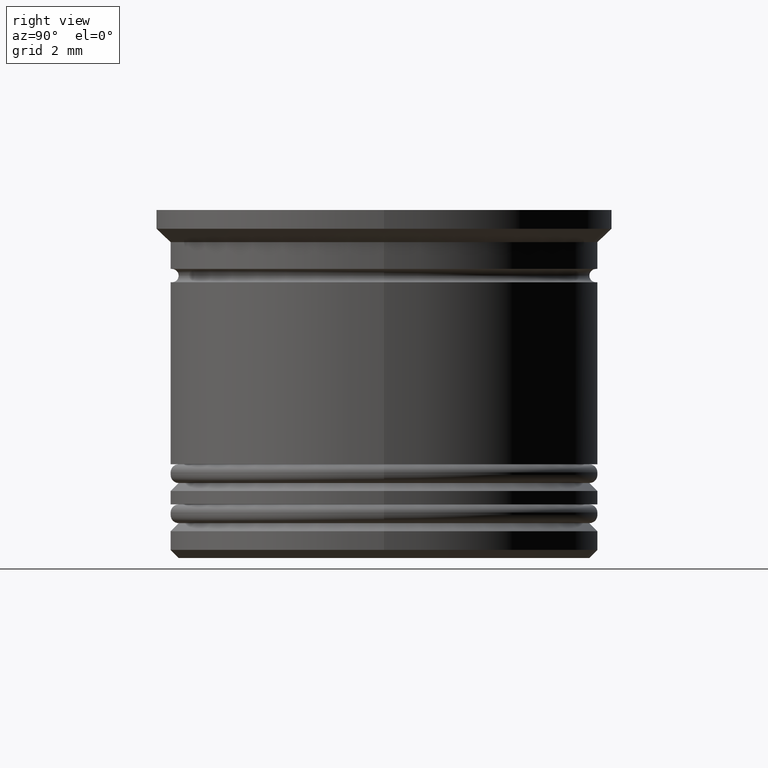
[diagram: clean part render]
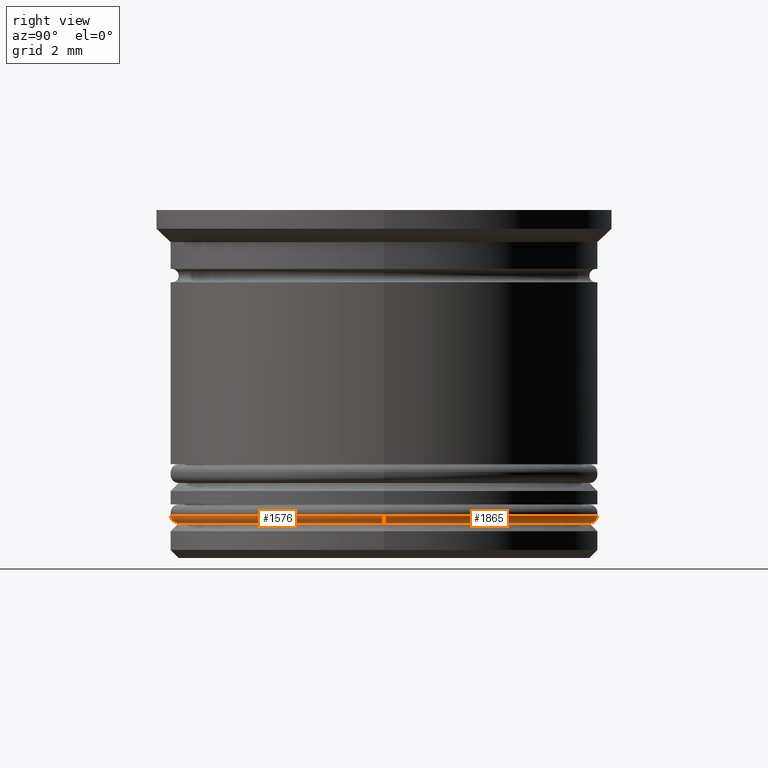
[diagram: same view with one multi-face feature highlighted, each face labeled with its STEP entity id]
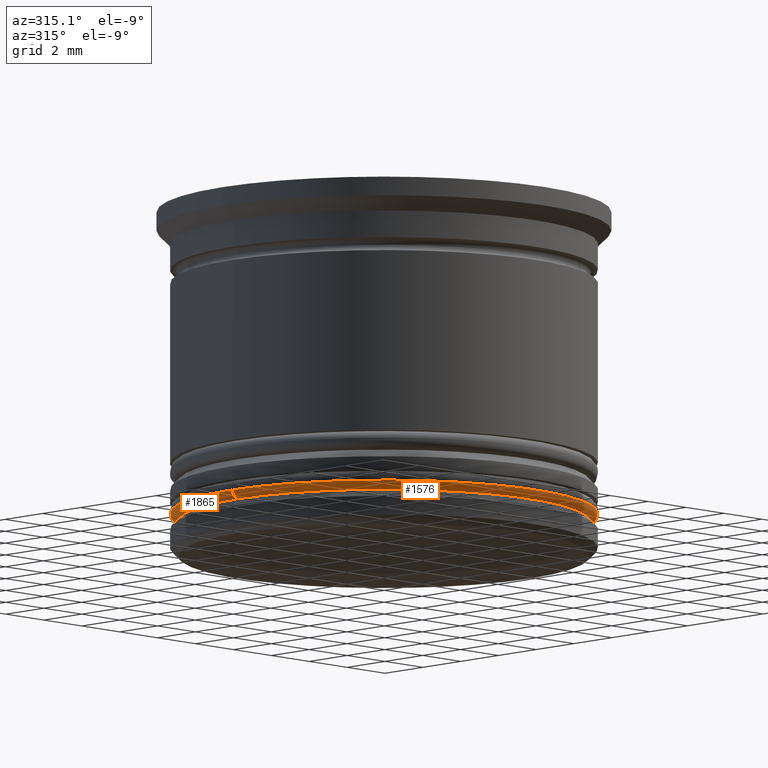
[diagram: same view with one multi-face feature highlighted, each face labeled with its STEP entity id]
A machine part, right view. The highlighted faces form ONE feature: a constant-radius fillet chain: 2 tangent blend faces with common blend radius 0.3 mm. The faces share edges in the B-rep.
A second angle (auxiliary view) of the same feature is appended — it is thin or edge-on in the first view.
Their STEP definitions:
[1] entity #1576 (Torus):
#172 = CARTESIAN_POINT ( 'NONE',  ( 0.000000000000000000, 0.000000000000000000, -11.40000000000000746 ) ) ;
#184 = CIRCLE ( 'NONE', #1670, 0.2999999999999999334 ) ;
#215 = TOROIDAL_SURFACE ( 'NONE', #1359, 7.700000000000001954, 0.2999999999999999889 ) ;
#256 = EDGE_LOOP ( 'NONE', ( #334, #466, #1301, #1643 ) ) ;
#261 = DIRECTION ( 'NONE',  ( -0.000000000000000000, -0.000000000000000000, -1.000000000000000000 ) ) ;
#323 = CARTESIAN_POINT ( 'NONE',  ( -7.700000000000001954, 9.613477373306725302E-16, -11.70000000000000639 ) ) ;
#334 = ORIENTED_EDGE ( 'NONE', *, *, #1326, .F. ) ;
#345 = VERTEX_POINT ( 'NONE', #524 ) ;
#416 = AXIS2_PLACEMENT_3D ( 'NONE', #172, #1142, #688 ) ;
#466 = ORIENTED_EDGE ( 'NONE', *, *, #937, .F. ) ;
#524 = CARTESIAN_POINT ( 'NONE',  ( 7.700000000000001954, 0.000000000000000000, -11.70000000000000639 ) ) ;
#560 = EDGE_CURVE ( 'NONE', #1616, #817, #1148, .T. ) ;
#580 = DIRECTION ( 'NONE',  ( 1.000000000000000000, 0.000000000000000000, 0.000000000000000000 ) ) ;
#688 = DIRECTION ( 'NONE',  ( 1.000000000000000000, 0.000000000000000000, 0.000000000000000000 ) ) ;
#691 = DIRECTION ( 'NONE',  ( 0.000000000000000000, -1.000000000000000000, 0.000000000000000000 ) ) ;
#713 = CARTESIAN_POINT ( 'NONE',  ( 7.700000000000001954, 0.000000000000000000, -11.40000000000000746 ) ) ;
#772 = CARTESIAN_POINT ( 'NONE',  ( -8.000000000000001776, 9.797174393178827630E-16, -11.40000000000000746 ) ) ;
#792 = DIRECTION ( 'NONE',  ( 1.224646799147353207E-16, 1.000000000000000000, -0.000000000000000000 ) ) ;
#817 = VERTEX_POINT ( 'NONE', #1415 ) ;
#848 = CARTESIAN_POINT ( 'NONE',  ( 0.000000000000000000, 0.000000000000000000, -11.40000000000000746 ) ) ;
#903 = EDGE_CURVE ( 'NONE', #345, #817, #1355, .T. ) ;
#937 = EDGE_CURVE ( 'NONE', #345, #1338, #1636, .T. ) ;
#955 = AXIS2_PLACEMENT_3D ( 'NONE', #713, #691, #1305 ) ;
#1074 = CARTESIAN_POINT ( 'NONE',  ( -7.700000000000001954, 9.429780353434622974E-16, -11.40000000000000746 ) ) ;
#1133 = DIRECTION ( 'NONE',  ( 0.000000000000000000, 0.000000000000000000, 1.000000000000000000 ) ) ;
#1142 = DIRECTION ( 'NONE',  ( 0.000000000000000000, 0.000000000000000000, 1.000000000000000000 ) ) ;
#1148 = CIRCLE ( 'NONE', #416, 8.000000000000001776 ) ;
#1190 = CARTESIAN_POINT ( 'NONE',  ( 0.000000000000000000, 0.000000000000000000, -11.70000000000000639 ) ) ;
#1256 = DIRECTION ( 'NONE',  ( -1.000000000000000000, 1.224646799147353207E-16, 0.000000000000000000 ) ) ;
#1301 = ORIENTED_EDGE ( 'NONE', *, *, #903, .T. ) ;
#1305 = DIRECTION ( 'NONE',  ( 0.000000000000000000, 0.000000000000000000, -1.000000000000000000 ) ) ;
#1326 = EDGE_CURVE ( 'NONE', #1338, #1616, #184, .T. ) ;
#1338 = VERTEX_POINT ( 'NONE', #323 ) ;
#1355 = CIRCLE ( 'NONE', #955, 0.2999999999999999334 ) ;
#1359 = AXIS2_PLACEMENT_3D ( 'NONE', #848, #1133, #1573 ) ;
#1415 = CARTESIAN_POINT ( 'NONE',  ( 8.000000000000001776, 0.000000000000000000, -11.40000000000000746 ) ) ;
#1447 = FACE_OUTER_BOUND ( 'NONE', #256, .T. ) ;
#1472 = AXIS2_PLACEMENT_3D ( 'NONE', #1190, #261, #580 ) ;
#1573 = DIRECTION ( 'NONE',  ( 1.000000000000000000, 0.000000000000000000, 0.000000000000000000 ) ) ;
#1576 = ADVANCED_FACE ( 'NONE', ( #1447 ), #215, .T. ) ;
#1616 = VERTEX_POINT ( 'NONE', #772 ) ;
#1636 = CIRCLE ( 'NONE', #1472, 7.700000000000001954 ) ;
#1643 = ORIENTED_EDGE ( 'NONE', *, *, #560, .F. ) ;
#1670 = AXIS2_PLACEMENT_3D ( 'NONE', #1074, #792, #1256 ) ;
[2] entity #1865 (Torus):
#151 = ORIENTED_EDGE ( 'NONE', *, *, #1326, .T. ) ;
#184 = CIRCLE ( 'NONE', #1670, 0.2999999999999999334 ) ;
#248 = AXIS2_PLACEMENT_3D ( 'NONE', #1940, #1868, #505 ) ;
#323 = CARTESIAN_POINT ( 'NONE',  ( -7.700000000000001954, 9.613477373306725302E-16, -11.70000000000000639 ) ) ;
#345 = VERTEX_POINT ( 'NONE', #524 ) ;
#387 = DIRECTION ( 'NONE',  ( 0.000000000000000000, 0.000000000000000000, 1.000000000000000000 ) ) ;
#505 = DIRECTION ( 'NONE',  ( 1.000000000000000000, 0.000000000000000000, 0.000000000000000000 ) ) ;
#524 = CARTESIAN_POINT ( 'NONE',  ( 7.700000000000001954, 0.000000000000000000, -11.70000000000000639 ) ) ;
#541 = CARTESIAN_POINT ( 'NONE',  ( 0.000000000000000000, 0.000000000000000000, -11.40000000000000746 ) ) ;
#566 = DIRECTION ( 'NONE',  ( 1.000000000000000000, 0.000000000000000000, 0.000000000000000000 ) ) ;
#582 = TOROIDAL_SURFACE ( 'NONE', #830, 7.700000000000001954, 0.2999999999999999889 ) ;
#691 = DIRECTION ( 'NONE',  ( 0.000000000000000000, -1.000000000000000000, 0.000000000000000000 ) ) ;
#694 = EDGE_CURVE ( 'NONE', #817, #1616, #1385, .T. ) ;
#713 = CARTESIAN_POINT ( 'NONE',  ( 7.700000000000001954, 0.000000000000000000, -11.40000000000000746 ) ) ;
#772 = CARTESIAN_POINT ( 'NONE',  ( -8.000000000000001776, 9.797174393178827630E-16, -11.40000000000000746 ) ) ;
#792 = DIRECTION ( 'NONE',  ( 1.224646799147353207E-16, 1.000000000000000000, -0.000000000000000000 ) ) ;
#817 = VERTEX_POINT ( 'NONE', #1415 ) ;
#830 = AXIS2_PLACEMENT_3D ( 'NONE', #1915, #387, #566 ) ;
#903 = EDGE_CURVE ( 'NONE', #345, #817, #1355, .T. ) ;
#927 = AXIS2_PLACEMENT_3D ( 'NONE', #541, #1031, #1963 ) ;
#955 = AXIS2_PLACEMENT_3D ( 'NONE', #713, #691, #1305 ) ;
#1031 = DIRECTION ( 'NONE',  ( 0.000000000000000000, 0.000000000000000000, 1.000000000000000000 ) ) ;
#1074 = CARTESIAN_POINT ( 'NONE',  ( -7.700000000000001954, 9.429780353434622974E-16, -11.40000000000000746 ) ) ;
#1105 = ORIENTED_EDGE ( 'NONE', *, *, #1420, .F. ) ;
#1135 = ORIENTED_EDGE ( 'NONE', *, *, #694, .F. ) ;
#1256 = DIRECTION ( 'NONE',  ( -1.000000000000000000, 1.224646799147353207E-16, 0.000000000000000000 ) ) ;
#1302 = FACE_OUTER_BOUND ( 'NONE', #1612, .T. ) ;
#1305 = DIRECTION ( 'NONE',  ( 0.000000000000000000, 0.000000000000000000, -1.000000000000000000 ) ) ;
#1326 = EDGE_CURVE ( 'NONE', #1338, #1616, #184, .T. ) ;
#1338 = VERTEX_POINT ( 'NONE', #323 ) ;
#1355 = CIRCLE ( 'NONE', #955, 0.2999999999999999334 ) ;
#1385 = CIRCLE ( 'NONE', #927, 8.000000000000001776 ) ;
#1415 = CARTESIAN_POINT ( 'NONE',  ( 8.000000000000001776, 0.000000000000000000, -11.40000000000000746 ) ) ;
#1420 = EDGE_CURVE ( 'NONE', #1338, #345, #1866, .T. ) ;
#1612 = EDGE_LOOP ( 'NONE', ( #1105, #151, #1135, #1706 ) ) ;
#1616 = VERTEX_POINT ( 'NONE', #772 ) ;
#1670 = AXIS2_PLACEMENT_3D ( 'NONE', #1074, #792, #1256 ) ;
#1706 = ORIENTED_EDGE ( 'NONE', *, *, #903, .F. ) ;
#1865 = ADVANCED_FACE ( 'NONE', ( #1302 ), #582, .T. ) ;
#1866 = CIRCLE ( 'NONE', #248, 7.700000000000001954 ) ;
#1868 = DIRECTION ( 'NONE',  ( -0.000000000000000000, -0.000000000000000000, -1.000000000000000000 ) ) ;
#1915 = CARTESIAN_POINT ( 'NONE',  ( 0.000000000000000000, 0.000000000000000000, -11.40000000000000746 ) ) ;
#1940 = CARTESIAN_POINT ( 'NONE',  ( 0.000000000000000000, 0.000000000000000000, -11.70000000000000639 ) ) ;
#1963 = DIRECTION ( 'NONE',  ( 1.000000000000000000, 0.000000000000000000, 0.000000000000000000 ) ) ;